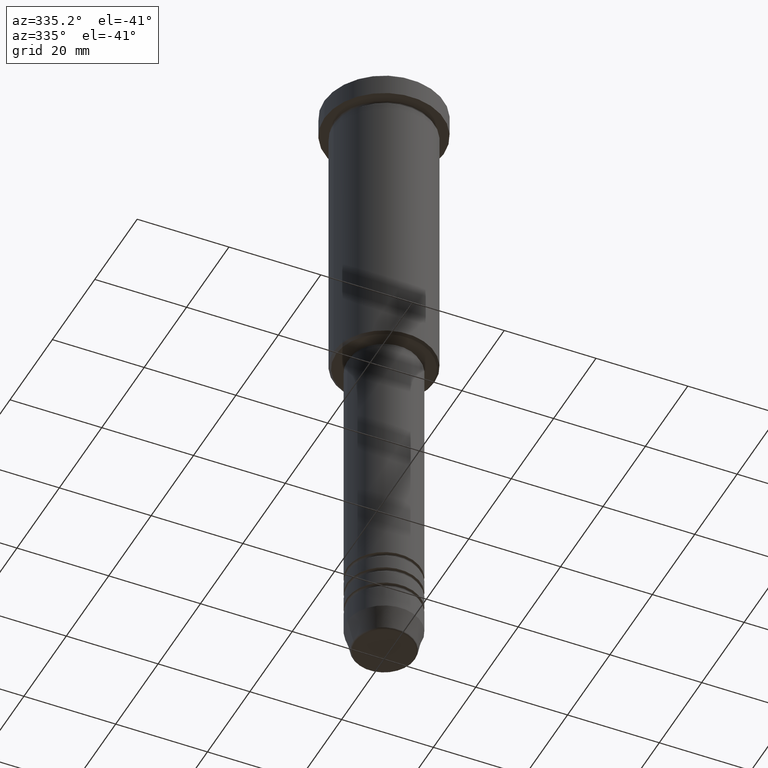
[diagram: clean part render]
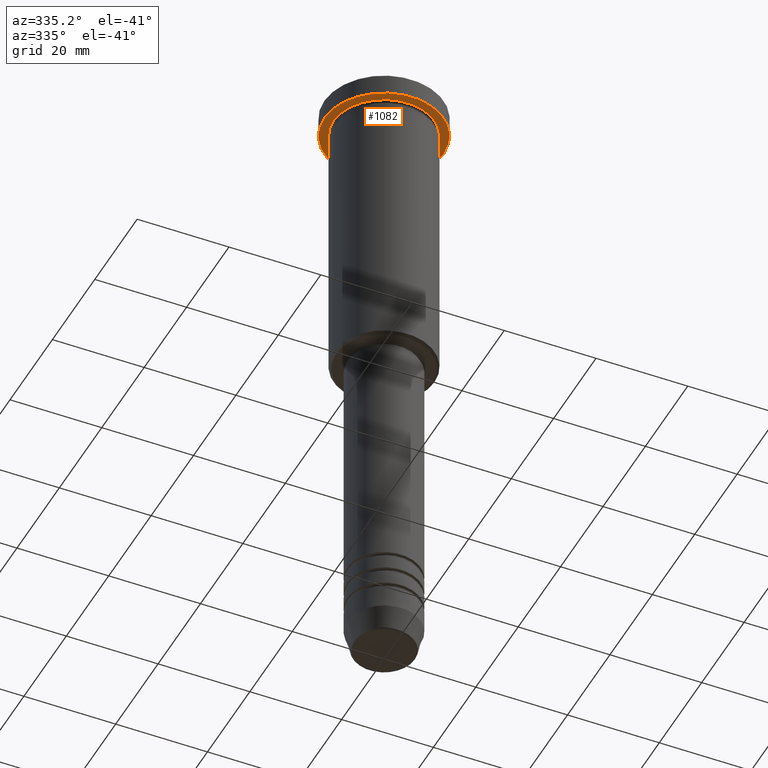
[diagram: same view with one face highlighted and labeled with its STEP entity id]
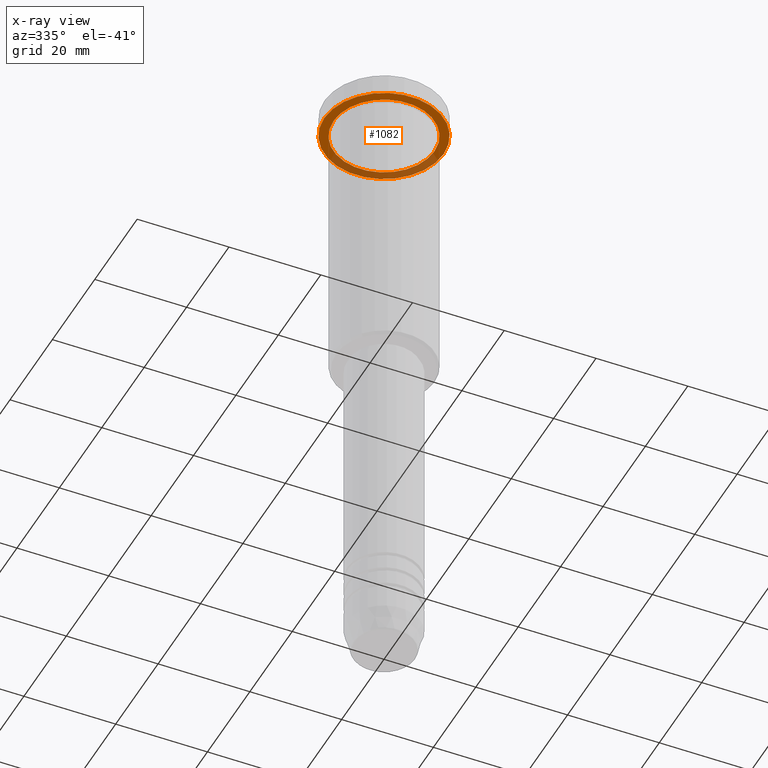
[diagram: x-ray of the same camera — body ghosted, the highlighted face saturated]
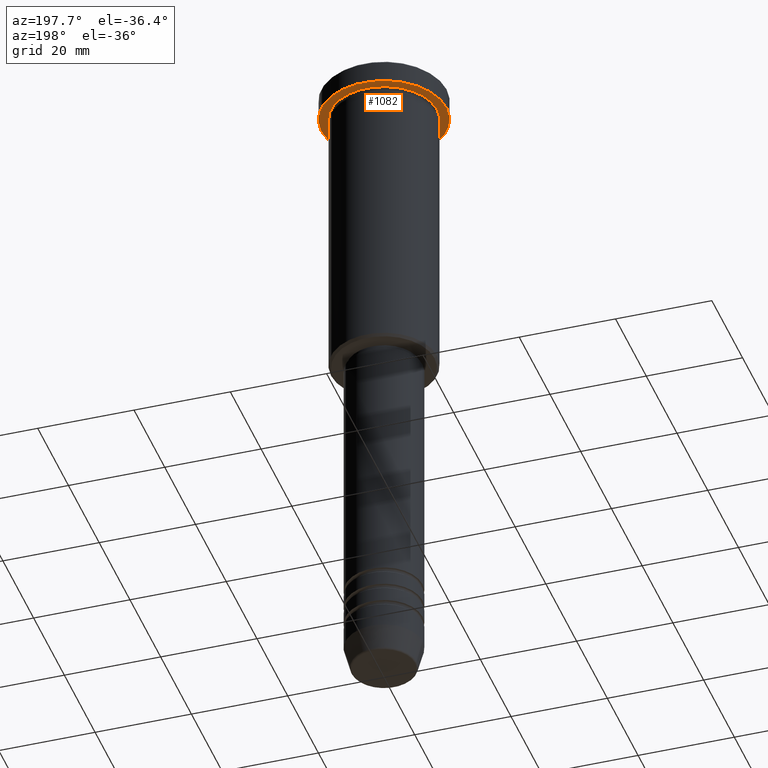
[diagram: same view with one face highlighted and labeled with its STEP entity id]
A machine part, auxiliary view. The second image highlights one B-rep face of the part: STEP entity #1082.
The next image is the same camera in x-ray: the body ghosted, the highlighted face saturated — about 32% of this face is hidden behind the body in this view.
A second angle (auxiliary view) of the same face is appended — the face is thin or edge-on in the first view.
In plain terms, the highlighted planar face has unit normal (0, 0, -1).
Its self-contained STEP definition (entity closure, byte-faithful):
#8 = DIRECTION ( 'NONE',  ( 1.000000000000000000, 0.000000000000000000, 0.000000000000000000 ) ) ;
#45 = CIRCLE ( 'NONE', #644, 11.00000000000000000 ) ;
#59 = CIRCLE ( 'NONE', #386, 11.00000000000000000 ) ;
#72 = FACE_OUTER_BOUND ( 'NONE', #356, .T. ) ;
#84 = DIRECTION ( 'NONE',  ( -1.000000000000000000, 0.000000000000000000, 0.000000000000000000 ) ) ;
#93 = DIRECTION ( 'NONE',  ( 0.000000000000000000, 0.000000000000000000, -1.000000000000000000 ) ) ;
#119 = DIRECTION ( 'NONE',  ( -0.000000000000000000, -0.000000000000000000, 1.000000000000000000 ) ) ;
#125 = EDGE_CURVE ( 'NONE', #726, #173, #459, .T. ) ;
#136 = DIRECTION ( 'NONE',  ( 1.000000000000000000, 0.000000000000000000, 0.000000000000000000 ) ) ;
#173 = VERTEX_POINT ( 'NONE', #754 ) ;
#319 = DIRECTION ( 'NONE',  ( -0.000000000000000000, -0.000000000000000000, 1.000000000000000000 ) ) ;
#339 = ORIENTED_EDGE ( 'NONE', *, *, #923, .F. ) ;
#356 = EDGE_LOOP ( 'NONE', ( #904, #339 ) ) ;
#360 = EDGE_LOOP ( 'NONE', ( #402, #834 ) ) ;
#362 = CARTESIAN_POINT ( 'NONE',  ( 11.00000000000000000, 1.347111479062088405E-15, -4.999999999999999112 ) ) ;
#381 = AXIS2_PLACEMENT_3D ( 'NONE', #443, #93, #815 ) ;
#382 = AXIS2_PLACEMENT_3D ( 'NONE', #761, #676, #8 ) ;
#386 = AXIS2_PLACEMENT_3D ( 'NONE', #514, #119, #426 ) ;
#402 = ORIENTED_EDGE ( 'NONE', *, *, #784, .T. ) ;
#426 = DIRECTION ( 'NONE',  ( -1.000000000000000000, 0.000000000000000000, 0.000000000000000000 ) ) ;
#443 = CARTESIAN_POINT ( 'NONE',  ( 0.000000000000000000, 13.00000000000000000, -5.000000000000000000 ) ) ;
#459 = CIRCLE ( 'NONE', #382, 13.00000000000000000 ) ;
#491 = EDGE_CURVE ( 'NONE', #550, #1119, #59, .T. ) ;
#514 = CARTESIAN_POINT ( 'NONE',  ( 0.000000000000000000, 0.000000000000000000, -5.000000000000000000 ) ) ;
#550 = VERTEX_POINT ( 'NONE', #362 ) ;
#635 = AXIS2_PLACEMENT_3D ( 'NONE', #946, #319, #136 ) ;
#644 = AXIS2_PLACEMENT_3D ( 'NONE', #1068, #914, #84 ) ;
#676 = DIRECTION ( 'NONE',  ( -0.000000000000000000, -0.000000000000000000, 1.000000000000000000 ) ) ;
#726 = VERTEX_POINT ( 'NONE', #863 ) ;
#730 = FACE_BOUND ( 'NONE', #360, .T. ) ;
#754 = CARTESIAN_POINT ( 'NONE',  ( -13.00000000000000000, 1.592040838891559095E-15, -5.000000000000000000 ) ) ;
#761 = CARTESIAN_POINT ( 'NONE',  ( 0.000000000000000000, 0.000000000000000000, -5.000000000000000000 ) ) ;
#784 = EDGE_CURVE ( 'NONE', #1119, #550, #45, .T. ) ;
#815 = DIRECTION ( 'NONE',  ( -1.000000000000000000, 0.000000000000000000, -0.000000000000000000 ) ) ;
#834 = ORIENTED_EDGE ( 'NONE', *, *, #491, .T. ) ;
#839 = CARTESIAN_POINT ( 'NONE',  ( -11.00000000000000000, 0.000000000000000000, -4.999999999999999112 ) ) ;
#863 = CARTESIAN_POINT ( 'NONE',  ( 13.00000000000000000, 0.000000000000000000, -5.000000000000000000 ) ) ;
#904 = ORIENTED_EDGE ( 'NONE', *, *, #125, .F. ) ;
#914 = DIRECTION ( 'NONE',  ( -0.000000000000000000, -0.000000000000000000, 1.000000000000000000 ) ) ;
#923 = EDGE_CURVE ( 'NONE', #173, #726, #1133, .T. ) ;
#946 = CARTESIAN_POINT ( 'NONE',  ( 0.000000000000000000, 0.000000000000000000, -5.000000000000000000 ) ) ;
#1068 = CARTESIAN_POINT ( 'NONE',  ( 0.000000000000000000, 0.000000000000000000, -5.000000000000000000 ) ) ;
#1082 = ADVANCED_FACE ( 'NONE', ( #730, #72 ), #1088, .T. ) ;
#1088 = PLANE ( 'NONE',  #381 ) ;
#1119 = VERTEX_POINT ( 'NONE', #839 ) ;
#1133 = CIRCLE ( 'NONE', #635, 13.00000000000000000 ) ;